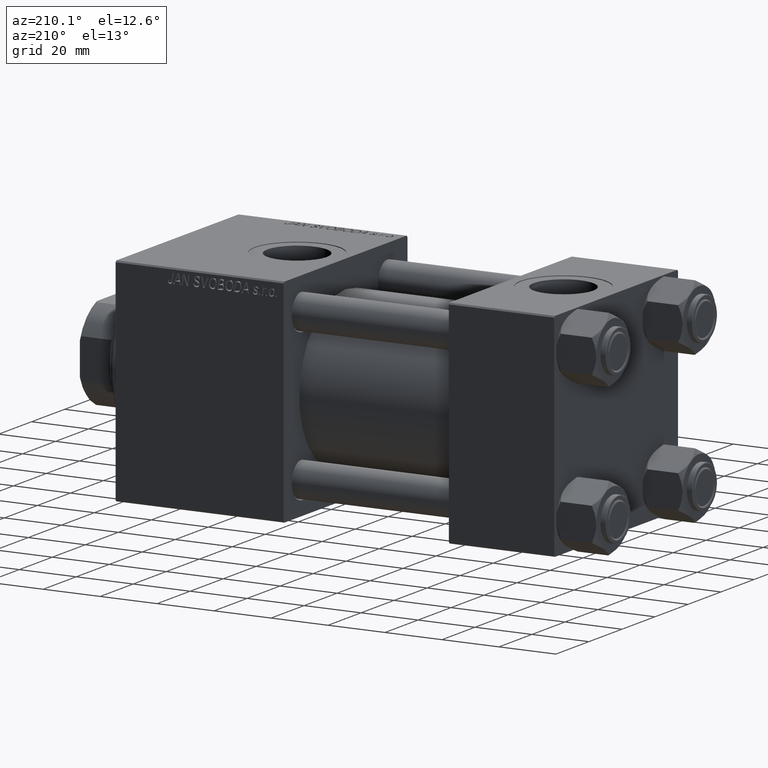
[diagram: clean part render]
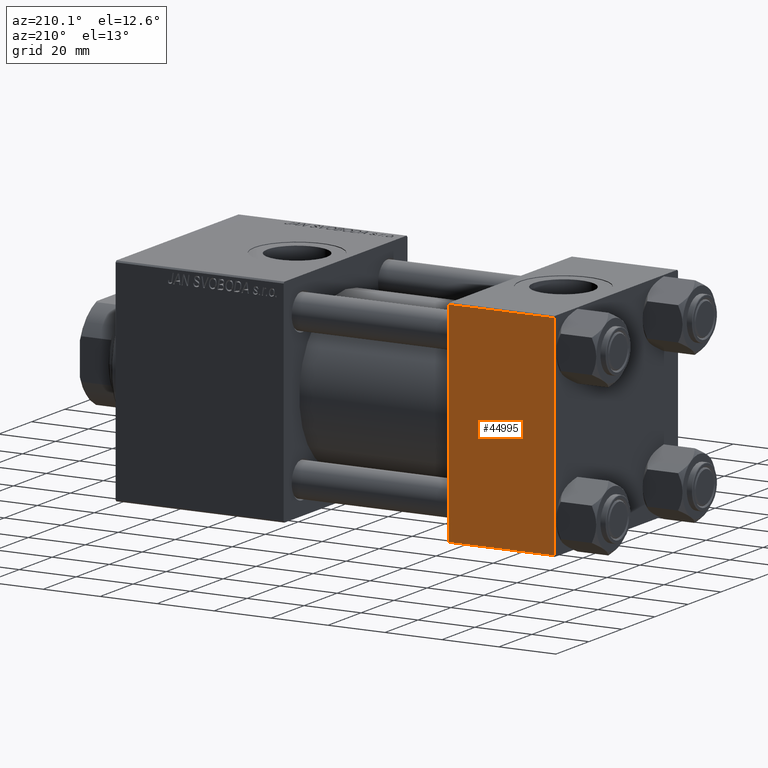
[diagram: same view with one face highlighted and labeled with its STEP entity id]
A machine part, auxiliary view. The second image highlights one B-rep face of the part: STEP entity #44995.
In plain terms, the highlighted planar face has unit normal (0, 1, 0).
Its self-contained STEP definition (entity closure, byte-faithful):
#1630 = DIRECTION ( 'NONE',  ( 0.000000000000000000, 0.000000000000000000, -1.000000000000000000 ) ) ;
#3415 = CARTESIAN_POINT ( 'NONE',  ( 37.00000000000000000, 37.49999999999999289, -36.99999999999998579 ) ) ;
#3648 = VERTEX_POINT ( 'NONE', #46411 ) ;
#4267 = VECTOR ( 'NONE', #1630, 1000.000000000000000 ) ;
#4986 = EDGE_CURVE ( 'NONE', #13902, #3648, #12927, .T. ) ;
#5302 = EDGE_CURVE ( 'NONE', #45551, #10753, #16947, .T. ) ;
#5580 = FACE_OUTER_BOUND ( 'NONE', #26355, .T. ) ;
#9240 = ORIENTED_EDGE ( 'NONE', *, *, #26764, .T. ) ;
#9667 = CARTESIAN_POINT ( 'NONE',  ( 37.00000000000000000, 37.49999999999999289, 37.50000000000000000 ) ) ;
#10753 = VERTEX_POINT ( 'NONE', #31598 ) ;
#11133 = ORIENTED_EDGE ( 'NONE', *, *, #43508, .T. ) ;
#12442 = CARTESIAN_POINT ( 'NONE',  ( 37.00000000000000000, 37.49999999999999289, 37.50000000000000000 ) ) ;
#12927 = LINE ( 'NONE', #12442, #35211 ) ;
#13429 = ORIENTED_EDGE ( 'NONE', *, *, #4986, .T. ) ;
#13902 = VERTEX_POINT ( 'NONE', #18147 ) ;
#16947 = LINE ( 'NONE', #21269, #4267 ) ;
#17842 = DIRECTION ( 'NONE',  ( 0.000000000000000000, -0.000000000000000000, 1.000000000000000000 ) ) ;
#18147 = CARTESIAN_POINT ( 'NONE',  ( 37.00000000000000000, 37.49999999999999289, 37.00000000000000000 ) ) ;
#21269 = CARTESIAN_POINT ( 'NONE',  ( 0.000000000000000000, 37.49999999999999289, 37.50000000000000000 ) ) ;
#24729 = PLANE ( 'NONE',  #34181 ) ;
#26177 = ORIENTED_EDGE ( 'NONE', *, *, #5302, .F. ) ;
#26355 = EDGE_LOOP ( 'NONE', ( #13429, #11133, #26177, #9240 ) ) ;
#26764 = EDGE_CURVE ( 'NONE', #45551, #13902, #39123, .T. ) ;
#31598 = CARTESIAN_POINT ( 'NONE',  ( 0.000000000000000000, 37.49999999999999289, -36.99999999999998579 ) ) ;
#33785 = CARTESIAN_POINT ( 'NONE',  ( 0.000000000000000000, 37.49999999999999289, 37.00000000000000000 ) ) ;
#34181 = AXIS2_PLACEMENT_3D ( 'NONE', #9667, #40757, #17842 ) ;
#34817 = DIRECTION ( 'NONE',  ( 1.000000000000000000, 0.000000000000000000, 0.000000000000000000 ) ) ;
#35211 = VECTOR ( 'NONE', #35887, 1000.000000000000000 ) ;
#35887 = DIRECTION ( 'NONE',  ( 0.000000000000000000, 0.000000000000000000, -1.000000000000000000 ) ) ;
#38332 = LINE ( 'NONE', #3415, #40603 ) ;
#38874 = CARTESIAN_POINT ( 'NONE',  ( 37.00000000000000000, 37.49999999999999289, 37.00000000000000000 ) ) ;
#39123 = LINE ( 'NONE', #38874, #45277 ) ;
#40603 = VECTOR ( 'NONE', #49816, 1000.000000000000000 ) ;
#40757 = DIRECTION ( 'NONE',  ( -0.000000000000000000, 1.000000000000000000, 0.000000000000000000 ) ) ;
#43508 = EDGE_CURVE ( 'NONE', #3648, #10753, #38332, .T. ) ;
#44995 = ADVANCED_FACE ( 'NONE', ( #5580 ), #24729, .T. ) ;
#45277 = VECTOR ( 'NONE', #34817, 1000.000000000000000 ) ;
#45551 = VERTEX_POINT ( 'NONE', #33785 ) ;
#46411 = CARTESIAN_POINT ( 'NONE',  ( 37.00000000000000000, 37.49999999999999289, -36.99999999999998579 ) ) ;
#49816 = DIRECTION ( 'NONE',  ( -1.000000000000000000, 0.000000000000000000, 0.000000000000000000 ) ) ;